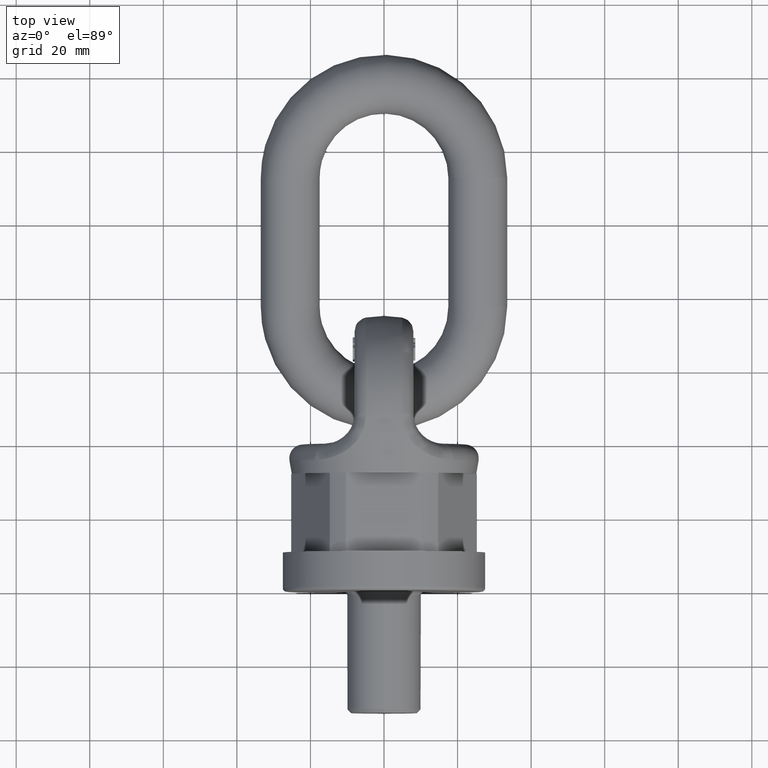
[diagram: clean part render]
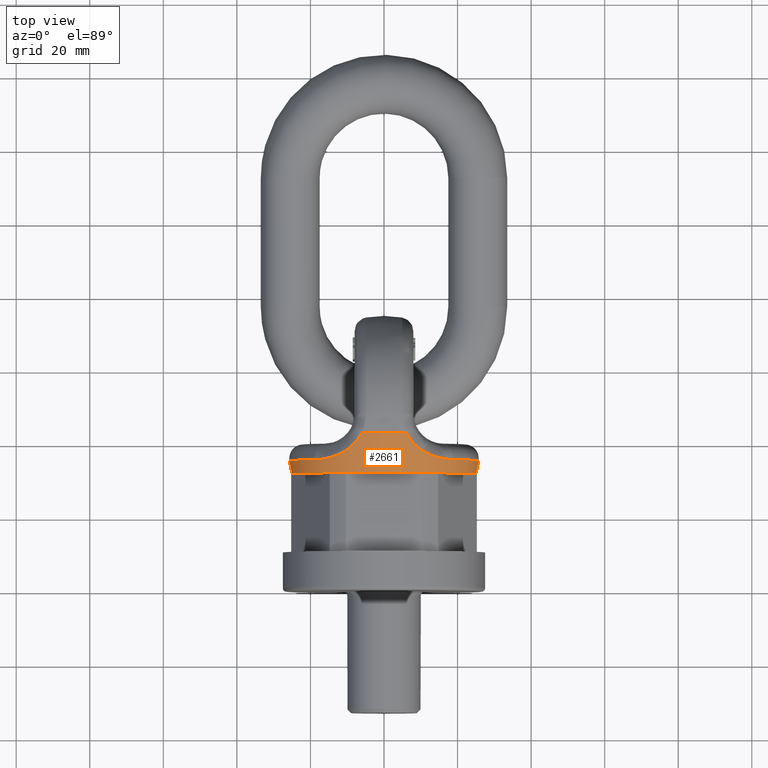
[diagram: same view with one face highlighted and labeled with its STEP entity id]
A machine part, top view. The second image highlights one B-rep face of the part: STEP entity #2661.
In plain terms, the highlighted conical surface has half-angle 9.798 deg.
Its self-contained STEP definition (entity closure, byte-faithful):
#349=B_SPLINE_CURVE_WITH_KNOTS('',3,(#7008,#7009,#7010,#7011,#7012,#7013),
 .UNSPECIFIED.,.F.,.F.,(4,2,4),(0.,0.5,1.),.UNSPECIFIED.);
#350=B_SPLINE_CURVE_WITH_KNOTS('',3,(#7018,#7019,#7020,#7021,#7022,#7023),
 .UNSPECIFIED.,.F.,.F.,(4,2,4),(0.,0.5,1.),.UNSPECIFIED.);
#351=B_SPLINE_CURVE_WITH_KNOTS('',3,(#7027,#7028,#7029,#7030,#7031,#7032),
 .UNSPECIFIED.,.F.,.F.,(4,2,4),(0.,0.5,1.),.UNSPECIFIED.);
#352=B_SPLINE_CURVE_WITH_KNOTS('',3,(#7036,#7037,#7038,#7039,#7040,#7041),
 .UNSPECIFIED.,.F.,.F.,(4,2,4),(0.,0.5,1.),.UNSPECIFIED.);
#1787=CONICAL_SURFACE('',#5649,25.2302067635866,9.79847488617262);
#2661=ADVANCED_FACE('',(#3008,#3009),#1787,.T.);
#3008=FACE_BOUND('',#3096,.T.);
#3009=FACE_BOUND('',#3097,.T.);
#3096=EDGE_LOOP('',(#3513));
#3097=EDGE_LOOP('',(#3514,#3515,#3516,#3517,#3518,#3519,#3520,#3521));
#3513=ORIENTED_EDGE('',*,*,#5058,.F.);
#3514=ORIENTED_EDGE('',*,*,#5059,.T.);
#3515=ORIENTED_EDGE('',*,*,#5060,.T.);
#3516=ORIENTED_EDGE('',*,*,#5061,.T.);
#3517=ORIENTED_EDGE('',*,*,#5062,.T.);
#3518=ORIENTED_EDGE('',*,*,#5063,.T.);
#3519=ORIENTED_EDGE('',*,*,#5064,.T.);
#3520=ORIENTED_EDGE('',*,*,#5065,.T.);
#3521=ORIENTED_EDGE('',*,*,#5066,.T.);
#4645=VERTEX_POINT('',#7007);
#4646=VERTEX_POINT('',#7014);
#4647=VERTEX_POINT('',#7015);
#4648=VERTEX_POINT('',#7017);
#4649=VERTEX_POINT('',#7024);
#4650=VERTEX_POINT('',#7026);
#4651=VERTEX_POINT('',#7033);
#4652=VERTEX_POINT('',#7035);
#4653=VERTEX_POINT('',#7042);
#5058=EDGE_CURVE('',#4645,#4645,#5553,.T.);
#5059=EDGE_CURVE('',#4646,#4647,#349,.T.);
#5060=EDGE_CURVE('',#4647,#4648,#5554,.T.);
#5061=EDGE_CURVE('',#4648,#4649,#350,.T.);
#5062=EDGE_CURVE('',#4649,#4650,#5555,.T.);
#5063=EDGE_CURVE('',#4650,#4651,#351,.T.);
#5064=EDGE_CURVE('',#4651,#4652,#5556,.T.);
#5065=EDGE_CURVE('',#4652,#4653,#352,.T.);
#5066=EDGE_CURVE('',#4653,#4646,#5557,.T.);
#5553=CIRCLE('',#5644,25.2302067635866);
#5554=CIRCLE('',#5645,27.0988417924046);
#5555=CIRCLE('',#5646,25.8539761439334);
#5556=CIRCLE('',#5647,27.0988417924046);
#5557=CIRCLE('',#5648,25.8539761439334);
#5644=AXIS2_PLACEMENT_3D('',#7006,#5959,#5960);
#5645=AXIS2_PLACEMENT_3D('',#7016,#5961,#5962);
#5646=AXIS2_PLACEMENT_3D('',#7025,#5963,#5964);
#5647=AXIS2_PLACEMENT_3D('',#7034,#5965,#5966);
#5648=AXIS2_PLACEMENT_3D('',#7043,#5967,#5968);
#5649=AXIS2_PLACEMENT_3D('',#7044,#5969,#5970);
#5959=DIRECTION('',(0.,-1.,0.));
#5960=DIRECTION('',(0.,0.,-1.));
#5961=DIRECTION('',(0.,-1.,0.));
#5962=DIRECTION('',(0.,0.,-1.));
#5963=DIRECTION('',(0.,-1.,0.));
#5964=DIRECTION('',(0.,0.,-1.));
#5965=DIRECTION('',(0.,-1.,0.));
#5966=DIRECTION('',(0.,0.,-1.));
#5967=DIRECTION('',(0.,-1.,0.));
#5968=DIRECTION('',(-2.34291072916505E-15,0.,1.));
#5969=DIRECTION('',(0.,1.,0.));
#5970=DIRECTION('',(0.,1.40227276169296E-16,1.));
#7006=CARTESIAN_POINT('',(0.,32.,0.));
#7007=CARTESIAN_POINT('',(0.,32.,-25.2302067635866));
#7008=CARTESIAN_POINT('',(-18.6682431880993,35.6118127402589,-17.8864411977637));
#7009=CARTESIAN_POINT('',(-16.6026135396763,35.6118127402589,-20.042357860388));
#7010=CARTESIAN_POINT('',(-14.2048556774492,36.0096549577191,-21.8579209643514));
#7011=CARTESIAN_POINT('',(-9.48351672167395,38.312230282026,-24.7059617112635));
#7012=CARTESIAN_POINT('',(-7.25945024028701,40.2128643500386,-25.6797626126411));
#7013=CARTESIAN_POINT('',(-5.97855748545767,42.8199600952317,-26.4311194784265));
#7014=CARTESIAN_POINT('',(-18.6682431880993,35.6118127402589,-17.8864411977637));
#7015=CARTESIAN_POINT('',(-5.97855748545769,42.8199600952318,-26.4311194784265));
#7016=CARTESIAN_POINT('',(0.,42.8199600952318,0.));
#7017=CARTESIAN_POINT('',(5.97855748545775,42.8199600952318,-26.4311194784264));
#7018=CARTESIAN_POINT('',(5.97855748545775,42.8199600952318,-26.4311194784264));
#7019=CARTESIAN_POINT('',(7.26219213318998,40.2072835726519,-25.6781542499971));
#7020=CARTESIAN_POINT('',(9.52469696534101,38.2870663902746,-24.6832729160973));
#7021=CARTESIAN_POINT('',(14.2098259360332,36.0123617819212,-21.8527492213664));
#7022=CARTESIAN_POINT('',(16.601323886494,35.6118127402589,-20.0437038832759));
#7023=CARTESIAN_POINT('',(18.6682431880993,35.6118127402589,-17.8864411977637));
#7024=CARTESIAN_POINT('',(18.6682431880993,35.6118127402589,-17.8864411977637));
#7025=CARTESIAN_POINT('',(0.,35.6118127402589,0.));
#7026=CARTESIAN_POINT('',(18.6682431880993,35.6118127402589,17.8864411977637));
#7027=CARTESIAN_POINT('',(18.6682431880993,35.6118127402589,17.8864411977637));
#7028=CARTESIAN_POINT('',(16.6026135396764,35.6118127402589,20.042357860388));
#7029=CARTESIAN_POINT('',(14.2048556774492,36.0096549577191,21.8579209643514));
#7030=CARTESIAN_POINT('',(9.483516721674,38.312230282026,24.7059617112635));
#7031=CARTESIAN_POINT('',(7.25945024028707,40.2128643500386,25.6797626126411));
#7032=CARTESIAN_POINT('',(5.97855748545773,42.8199600952317,26.4311194784265));
#7033=CARTESIAN_POINT('',(5.97855748545775,42.8199600952318,26.4311194784264));
#7034=CARTESIAN_POINT('',(0.,42.8199600952318,0.));
#7035=CARTESIAN_POINT('',(-5.97855748545781,42.8199600952318,26.4311194784264));
#7036=CARTESIAN_POINT('',(-5.97855748545781,42.8199600952318,26.4311194784264));
#7037=CARTESIAN_POINT('',(-7.26219213319004,40.2072835726519,25.6781542499971));
#7038=CARTESIAN_POINT('',(-9.52469696534108,38.2870663902746,24.6832729160973));
#7039=CARTESIAN_POINT('',(-14.2098259360332,36.0123617819212,21.8527492213663));
#7040=CARTESIAN_POINT('',(-16.6013238864941,35.6118127402589,20.0437038832759));
#7041=CARTESIAN_POINT('',(-18.6682431880994,35.6118127402589,17.8864411977636));
#7042=CARTESIAN_POINT('',(-18.6682431880994,35.6118127402589,17.8864411977636));
#7043=CARTESIAN_POINT('',(0.,35.6118127402589,0.));
#7044=CARTESIAN_POINT('',(0.,32.,0.));